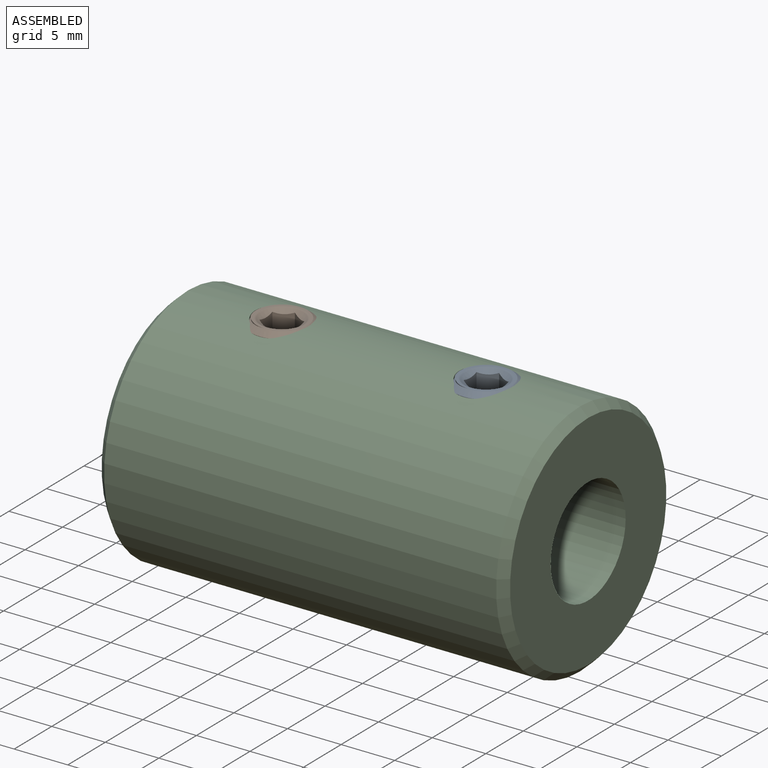
[diagram: assembled view]
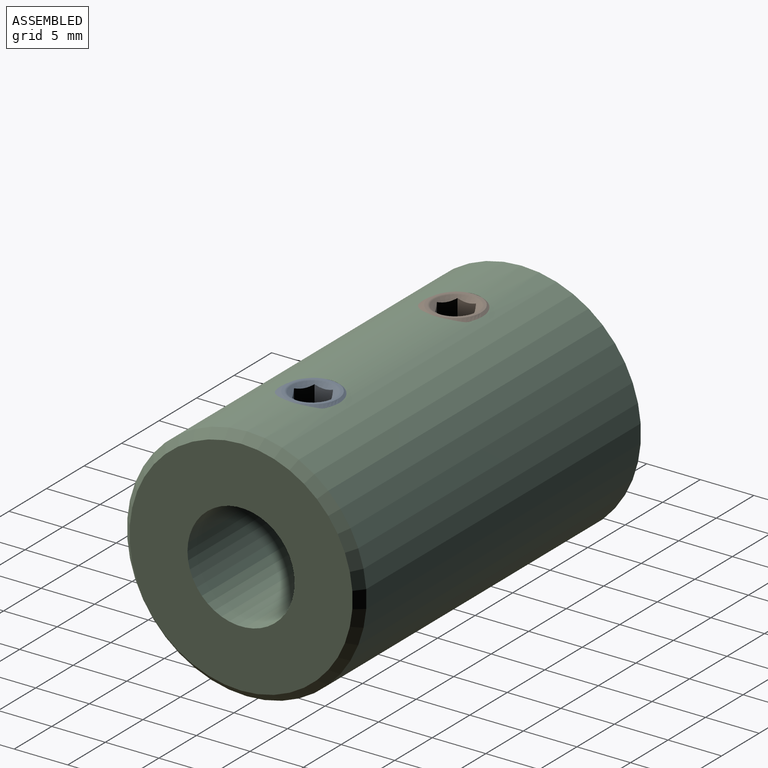
[diagram: assembled view, second angle]
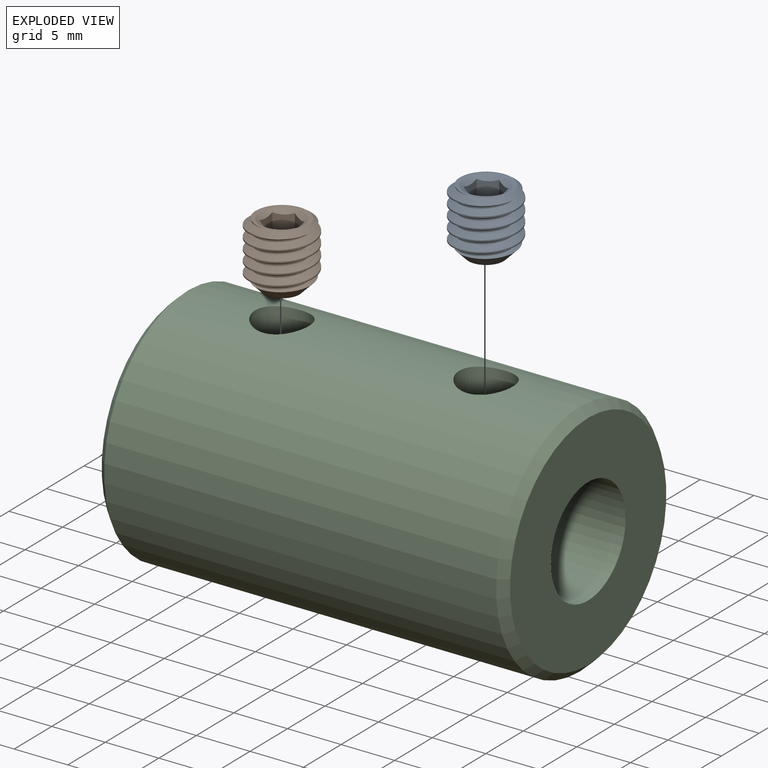
[diagram: exploded view]
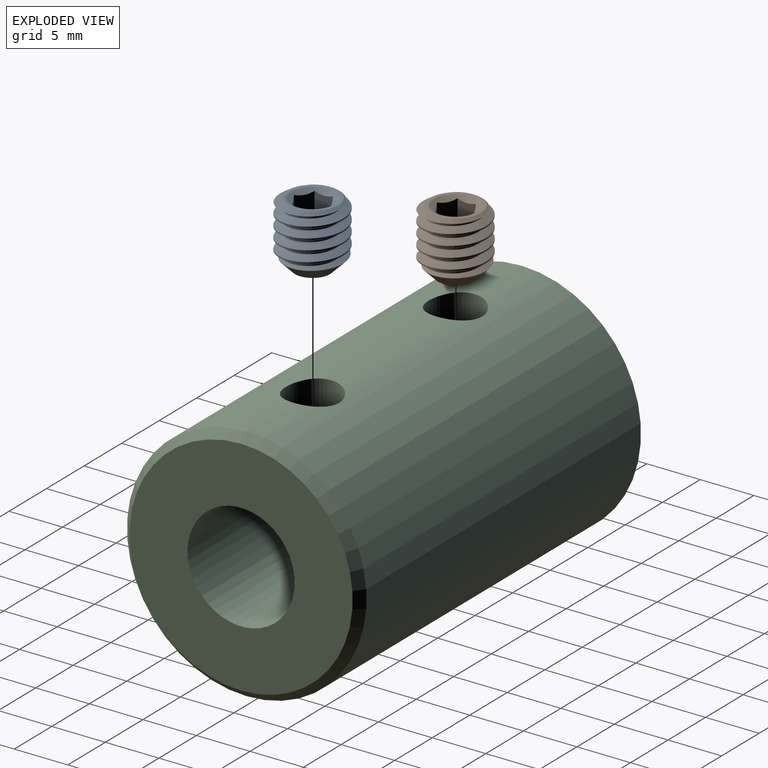
[diagram: exploded view, second angle]
ASSEMBLY  parts=3 mates=2
PART A: 23 faces, bbox 6x6x6.5 mm
  f0: plane 1.3x0.75mm, normal (0,0,1), area 0.1mm2, adj f15,f16,f21
  f1: plane 1.5x0.43mm, normal (0,0,1), area 0.1mm2, adj f15,f20,f21
  f2: plane 1.3x0.75mm, normal (0,0,1), area 0.1mm2, adj f19,f20,f21
  f3: plane 1.3x0.75mm, normal (0,0,1), area 0.1mm2, adj f18,f19,f21
  f4: plane 1.5x0.43mm, normal (0,0,1), area 0.1mm2, adj f17,f18,f21
  f5: plane 4.81x4.78mm, normal (0,0,1), area 3.2mm2, adj f6,f10,f11,f12,f22
  f6: cone r=3mm half-angle=55deg, axis (0,0,-1), area 5.7mm2, adj f5,f7,f10,f12
  f7: cylinder r=3mm len=6mm, axis (0,0,1), area 10mm2, adj f6,f8,f10,f12
  f8: cone r=1.64mm half-angle=45deg, axis (0,0,1), area 20mm2, adj f7,f9,f10,f11,f12
  f9: cone r=0mm half-angle=59deg, axis (0,0,-1), area 9.9mm2, adj f8
  f10: bspline ~6x6mm, area 60mm2, adj f5,f6,f7,f8,f11
  f11: bspline ~5.63x4.7mm, area 9.8mm2, adj f5,f8,f10,f12
  f12: bspline ~6x6mm, area 60mm2, adj f5,f6,f7,f8,f11
  f13: cone r=2.07mm half-angle=55deg, axis (0,0,1), area 5.5mm2, adj f15,f16,f17,f18,f19,f20,f22
  f14: plane 1.3x0.75mm, normal (0,0,1), area 0.1mm2, adj f16,f17,f21
  f15: plane 1.64x1.5mm, normal (0.5,-0.87,0), area 2.7mm2, adj f0,f1,f13,f16,f20
  f16: plane 1.74x1.64mm, normal (1,0,0), area 2.7mm2, adj f0,f13,f14,f15,f17
  f17: plane 1.64x1.5mm, normal (0.5,0.87,0), area 2.7mm2, adj f4,f13,f14,f16,f18
  f18: plane 1.64x1.5mm, normal (-0.5,0.87,0), area 2.7mm2, adj f3,f4,f13,f17,f19
  f19: plane 1.74x1.64mm, normal (-1,0,0), area 2.7mm2, adj f2,f3,f13,f18,f20
  f20: plane 1.64x1.5mm, normal (-0.5,-0.87,0), area 2.7mm2, adj f1,f2,f13,f15,f19
  f21: cone r=1.5mm half-angle=60deg, axis (0,0,1), area 8.2mm2, adj f0,f1,f2,f3,f4,f14
  f22: torus R=2.17mm, axis (0,0,-1), area 2.7mm2, adj f5,f13
PART B: same geometry as A
PART C: 10 faces, bbox 38.1x22.4x22.4 mm
  f0: cylinder r=11.18mm len=36.58mm, axis (1,0,0), area 2528.7mm2, adj f6,f7,f8,f9
  f1: cylinder r=5mm len=19.05mm, axis (-1,0,0), area 578.1mm2, adj f4,f5,f9
  f2: cylinder r=6mm len=19.05mm, axis (1,0,0), area 698.1mm2, adj f3,f4,f8
  f3: plane 20.83x20.83mm, normal (-1,0,0), area 227.6mm2, adj f2,f7
  f4: plane 12x12mm, normal (-1,0,0), area 34.6mm2, adj f1,f2
  f5: plane 20.83x20.83mm, normal (1,0,0), area 262.2mm2, adj f1,f6
  f6: cone r=10.41mm half-angle=45deg, axis (-1,0,0), area 73.1mm2, adj f0,f5
  f7: cone r=11.18mm half-angle=45deg, axis (1,0,0), area 73.1mm2, adj f0,f3
  f8: cylinder r=2.5mm len=5.72mm, axis (0,0,1), area 83.3mm2, adj f0,f2
  f9: cylinder r=2.5mm len=6.85mm, axis (0,0,1), area 100mm2, adj f0,f1
PLACE A t=(9.52,0,8.71)mm
PLACE B t=(-9.52,0,8.71)mm
PLACE C at identity fixed
MATE fastened B.f8 <-> C.f8  axis (0,0,1) through (-9.52,0,11.21)mm
MATE fastened A.f22 <-> C.f9  axis (0,0,-1) through (9.52,0,11.22)mm
